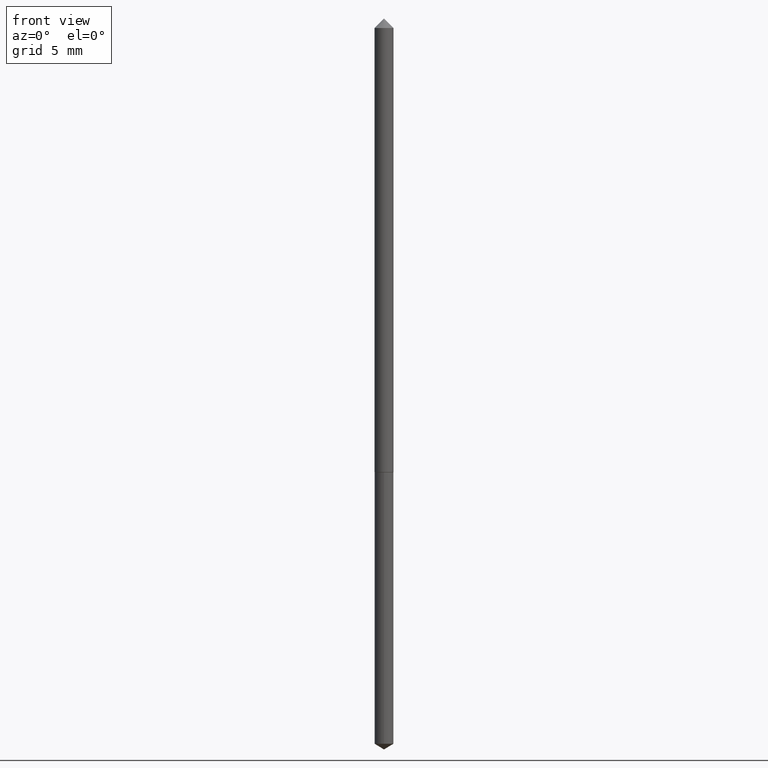
[diagram: clean part render]
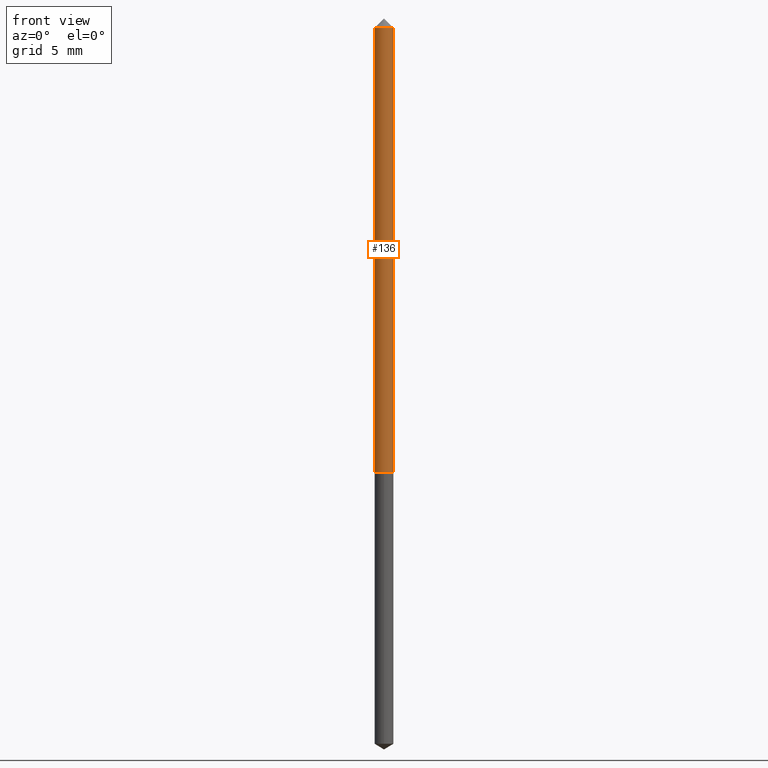
[diagram: same view with one face highlighted and labeled with its STEP entity id]
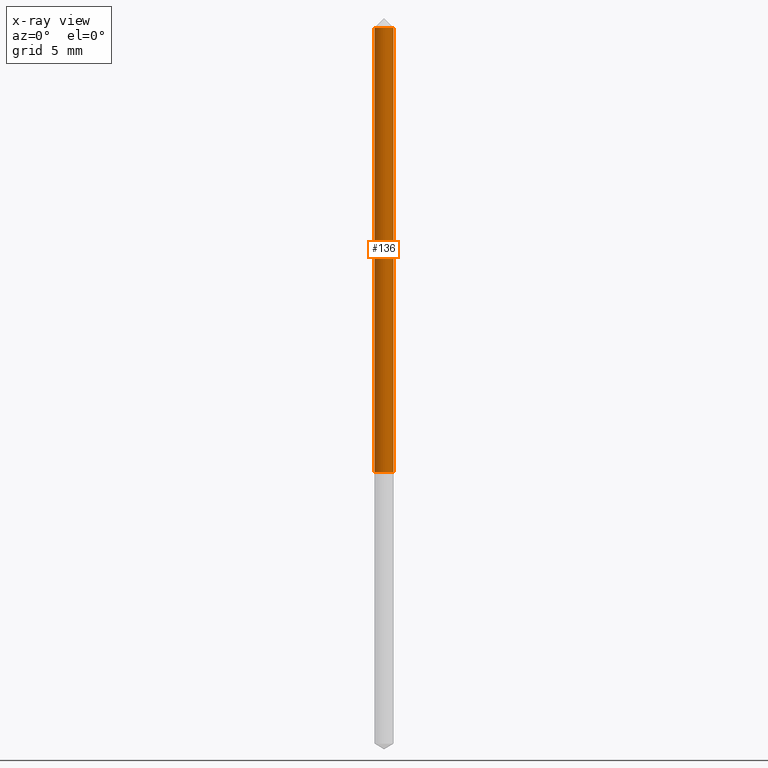
[diagram: x-ray of the same camera — body ghosted, the highlighted face saturated]
A machine part, front view. The second image highlights one B-rep face of the part: STEP entity #136.
The next image is the same camera in x-ray: the body ghosted, the highlighted face saturated — about 0% of this face is hidden behind the body in this view.
In plain terms, the highlighted cylindrical surface (edge-blend (fillet) strip) has radius 0.4064 mm, axis along (-0, 0, 1).
Its self-contained STEP definition (entity closure, byte-faithful):
#16 = AXIS2_PLACEMENT_3D ( 'NONE', #199, #181, #344 ) ;
#26 = ORIENTED_EDGE ( 'NONE', *, *, #256, .T. ) ;
#32 = CIRCLE ( 'NONE', #310, 0.01600000000000000380 ) ;
#36 = CARTESIAN_POINT ( 'NONE',  ( -0.01600000000000004891, 1.136868377216163772E-16, -7.870296144407873858E-31 ) ) ;
#60 = AXIS2_PLACEMENT_3D ( 'NONE', #158, #355, #294 ) ;
#74 = LINE ( 'NONE', #36, #334 ) ;
#77 = DIRECTION ( 'NONE',  ( -2.445468806185136597E-29, 3.491481338843145583E-15, 1.000000000000000000 ) ) ;
#78 = CARTESIAN_POINT ( 'NONE',  ( 0.01600000000000009401, -2.840320069148899113E-15, -0.7814999999999999725 ) ) ;
#86 = CIRCLE ( 'NONE', #60, 0.01600000000000009401 ) ;
#93 = VERTEX_POINT ( 'NONE', #283 ) ;
#101 = DIRECTION ( 'NONE',  ( -2.445468806185136877E-29, 3.491481338843145188E-15, 1.000000000000000000 ) ) ;
#116 = VERTEX_POINT ( 'NONE', #311 ) ;
#120 = VERTEX_POINT ( 'NONE', #130 ) ;
#124 = ORIENTED_EDGE ( 'NONE', *, *, #188, .T. ) ;
#129 = LINE ( 'NONE', #234, #139 ) ;
#130 = CARTESIAN_POINT ( 'NONE',  ( 0.01600000000000000380, -2.208361946818292980E-16, -0.03125000000000020123 ) ) ;
#136 = ADVANCED_FACE ( 'NONE', ( #338 ), #262, .T. ) ;
#139 = VECTOR ( 'NONE', #101, 39.37007874015748143 ) ;
#144 = ORIENTED_EDGE ( 'NONE', *, *, #265, .F. ) ;
#151 = DIRECTION ( 'NONE',  ( -2.445468806185136877E-29, 3.491481338843145188E-15, 1.000000000000000000 ) ) ;
#158 = CARTESIAN_POINT ( 'NONE',  ( 1.911133872033684367E-29, -2.728592666305918152E-15, -0.7814999999999999725 ) ) ;
#159 = EDGE_CURVE ( 'NONE', #93, #116, #74, .T. ) ;
#161 = DIRECTION ( 'NONE',  ( 1.000000000000000000, -6.982962677686266711E-15, 0.000000000000000000 ) ) ;
#181 = DIRECTION ( 'NONE',  ( -2.445468806185136597E-29, 3.491481338843145583E-15, 1.000000000000000000 ) ) ;
#188 = EDGE_CURVE ( 'NONE', #325, #120, #129, .T. ) ;
#199 = CARTESIAN_POINT ( 'NONE',  ( 0.000000000000000000, 0.000000000000000000, 0.000000000000000000 ) ) ;
#234 = CARTESIAN_POINT ( 'NONE',  ( 0.01600000000000004891, -1.117274028429806164E-16, 7.801882841273521721E-31 ) ) ;
#238 = CARTESIAN_POINT ( 'NONE',  ( 7.642090019328601786E-31, -1.091087918388490144E-16, -0.03125000000000020123 ) ) ;
#256 = EDGE_CURVE ( 'NONE', #93, #325, #86, .T. ) ;
#262 = CYLINDRICAL_SURFACE ( 'NONE', #16, 0.01600000000000004891 ) ;
#265 = EDGE_CURVE ( 'NONE', #116, #120, #32, .T. ) ;
#283 = CARTESIAN_POINT ( 'NONE',  ( -0.01600000000000009401, -2.614905828584301627E-15, -0.7814999999999999725 ) ) ;
#293 = ORIENTED_EDGE ( 'NONE', *, *, #159, .F. ) ;
#294 = DIRECTION ( 'NONE',  ( 1.000000000000000000, -6.982962677686261189E-15, 0.000000000000000000 ) ) ;
#310 = AXIS2_PLACEMENT_3D ( 'NONE', #238, #77, #161 ) ;
#311 = CARTESIAN_POINT ( 'NONE',  ( -0.01600000000000000380, -1.305163891350765523E-15, -0.03125000000000020123 ) ) ;
#323 = EDGE_LOOP ( 'NONE', ( #293, #26, #124, #144 ) ) ;
#325 = VERTEX_POINT ( 'NONE', #78 ) ;
#334 = VECTOR ( 'NONE', #151, 39.37007874015748143 ) ;
#338 = FACE_OUTER_BOUND ( 'NONE', #323, .T. ) ;
#344 = DIRECTION ( 'NONE',  ( 1.000000000000000000, -6.982962677686267499E-15, 4.876176775795936353E-29 ) ) ;
#355 = DIRECTION ( 'NONE',  ( -2.445468806185136597E-29, 3.491481338843145583E-15, 1.000000000000000000 ) ) ;